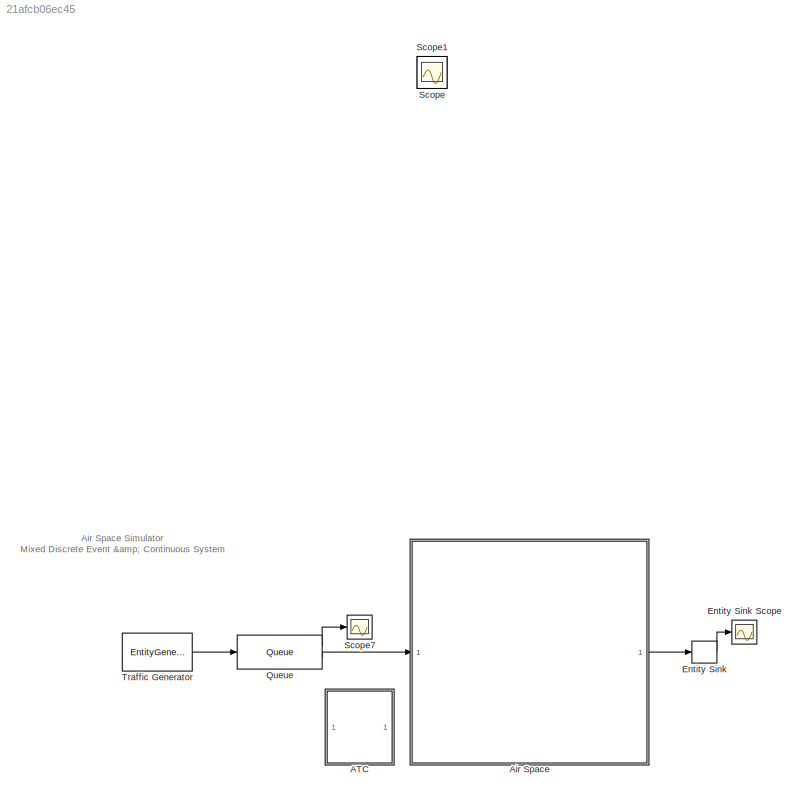
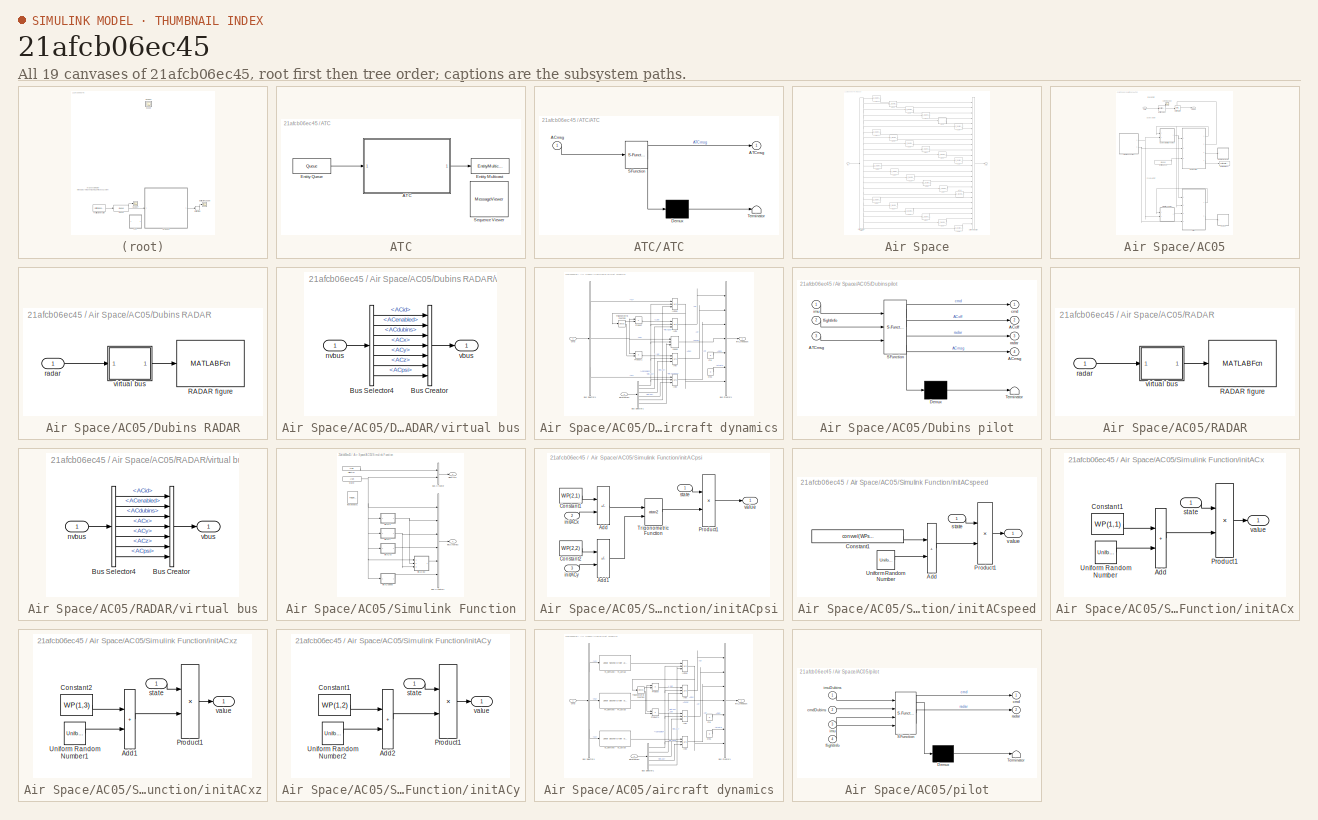
[diagram: thumbnail index - all 19 canvases of the model, root first then tree order]
MODEL slx_21afcb06ec45
KIND model
CONFIG AbsTol = auto
CONFIG EnableMultiTasking = off
CONFIG FixedStep = 1
CONFIG InitFcn = clear all\nclc\n\n%run config_Houston.m\nrun config_Malaga.m\n\nload('PBNsim_buses');
CONFIG MaxStep = auto
CONFIG MinStep = auto
CONFIG RelTol = 1e-3
CONFIG SampleTimeConstraint = Unconstrained
CONFIG SolverName = ode3
CONFIG StartFcn = rng('shuffle');\n
CONFIG StartTime = 0.0
CONFIG StopTime = 5000
BLOCK [SubSystem] ATC
  Ports = []
  RequestExecContextInheritance = off
BLOCK [SubSystem] ATC/ATC
  ErrorFcn = Stateflow.Translate.translate
  PermitHierarchicalResolution = ExplicitOnly
  Ports = [1, 1]
  RequestExecContextInheritance = off
  SFBlockType = Chart
  TreatAsAtomicUnit = on
BLOCK [Demux] ATC/ATC/ Demux 
  Outputs = 1
  Ports = [1, 1]
BLOCK [S-Function] ATC/ATC/ SFunction 
  EnableBusSupport = on
  FunctionName = sf_sfun
  InputPortMessageModes = m
  OutputPortMessageModes = n,m
  Parameters = WP,WPabort,WPnext,WPspeed
  PortCounts = [1 2]
  Ports = [1, 2]
  SFcnIsStateOwnerBlock = off
  SFunctionDeploymentMode = off
  Tag = Stateflow S-Function 2
BLOCK [Terminator] ATC/ATC/ Terminator 
BLOCK [Inport] ATC/ATC/ACmsg
BLOCK [Outport] ATC/ATC/ATCmsg
  VectorParamsAs1DForOutWhenUnconnected = off
BLOCK [EntityMulticast] ATC/Entity Multicast
  InputPortMessageModes = m
  MulticastTag = ATCcomm
BLOCK [Queue] ATC/Entity Queue
  Capacity = 100
  EntityArrivalSource = Multicast
  MulticastTag = ACcomm
  OutputPortMap = o5
  OutputPortMessageModes = m
  Ports = [0, 1]
BLOCK [MessageViewer] ATC/Sequence Viewer
  History = 1000
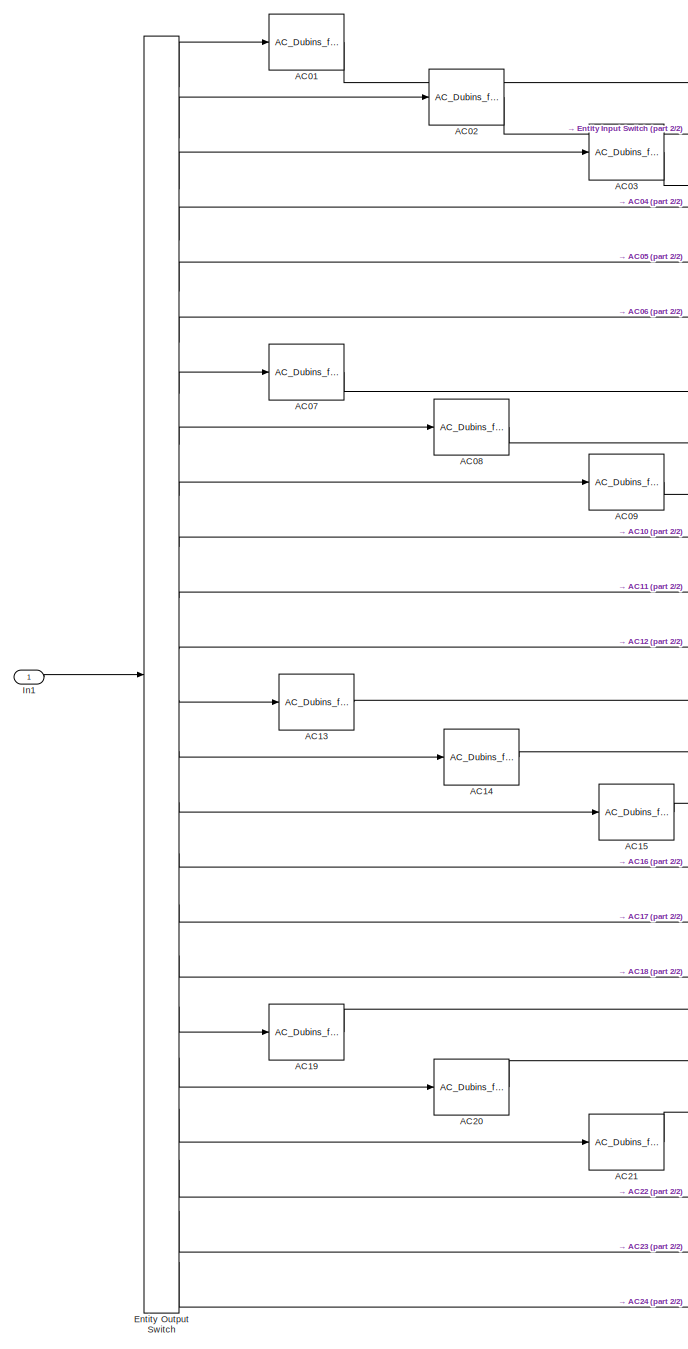
[diagram: Air Space - part 1/2, left side, full height]
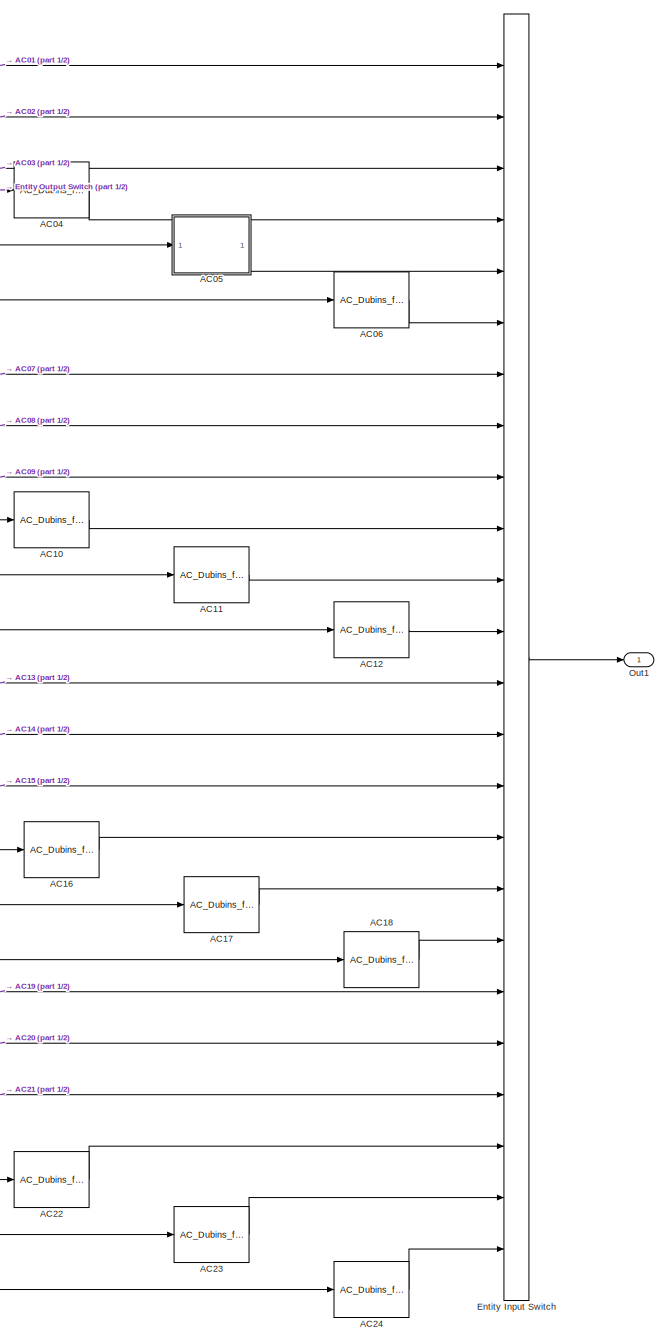
[diagram: Air Space - part 2/2, right side, full height]
BLOCK [SubSystem] Air Space
  Ports = [1, 1]
  RequestExecContextInheritance = off
BLOCK [Reference] Air Space/AC01  REF=AC/AC_Dubins_flyable
  Ports = [1, 1]
  SourceBlock = AC/AC_Dubins_flyable
  SourceType = SubSystem
BLOCK [Reference] Air Space/AC02  REF=AC/AC_Dubins_flyable
  Ports = [1, 1]
  SourceBlock = AC/AC_Dubins_flyable
  SourceType = SubSystem
BLOCK [Reference] Air Space/AC03  REF=AC/AC_Dubins_flyable
  Ports = [1, 1]
  SourceBlock = AC/AC_Dubins_flyable
  SourceType = SubSystem
BLOCK [Reference] Air Space/AC04  REF=AC/AC_Dubins_flyable
  Ports = [1, 1]
  SourceBlock = AC/AC_Dubins_flyable
  SourceType = SubSystem
BLOCK [SubSystem] Air Space/AC05
  Ports = [1, 1]
  RequestExecContextInheritance = off
BLOCK [Inport] Air Space/AC05/ACin
BLOCK [Outport] Air Space/AC05/ACout
  VectorParamsAs1DForOutWhenUnconnected = off
BLOCK [SubSystem] Air Space/AC05/Dubins RADAR
  NameLocation = top
  Ports = [1]
  RequestExecContextInheritance = off
BLOCK [MATLABFcn] Air Space/AC05/Dubins RADAR/RADAR figure
  MATLABFcn = PBNsim_RADAR
  Output1D = off
  OutputDimensions = 0
  Ports = [1]
  StartFcn = clear functions;\nclc;
BLOCK [Inport] Air Space/AC05/Dubins RADAR/radar
BLOCK [SubSystem] Air Space/AC05/Dubins RADAR/virtual bus
  Ports = [1, 1]
  RequestExecContextInheritance = off
BLOCK [BusCreator] Air Space/AC05/Dubins RADAR/virtual bus/Bus Creator
  DisplayOption = bar
  InheritFromInputs = off
  Inputs = 7
  OutDataTypeStr = Bus: bus_radar
  Ports = [7, 1]
BLOCK [BusSelector] Air Space/AC05/Dubins RADAR/virtual bus/Bus Selector4
  OutputSignals = ACid,ACenabled,ACdubins,ACx,ACy,ACz,ACpsi
  Ports = [1, 7]
BLOCK [Inport] Air Space/AC05/Dubins RADAR/virtual bus/nvbus
BLOCK [Outport] Air Space/AC05/Dubins RADAR/virtual bus/vbus
  VectorParamsAs1DForOutWhenUnconnected = off
BLOCK [SubSystem] Air Space/AC05/Dubins aircraft dynamics
  Ports = [2, 1]
  RequestExecContextInheritance = off
BLOCK [BusCreator] Air Space/AC05/Dubins aircraft dynamics/Bus Creator1
  DisplayOption = bar
  InheritFromInputs = off
  Inputs = 7
  OutDataTypeStr = Bus: bus_IMU
  Ports = [7, 1]
BLOCK [BusSelector] Air Space/AC05/Dubins aircraft dynamics/Bus Selector1
  OutputSignals = ACenabled,initACx,initACy,initACz,initACpsi,initACspeed
  Ports = [1, 6]
BLOCK [BusSelector] Air Space/AC05/Dubins aircraft dynamics/Bus Selector4
  OutputSignals = Ys,Fa,Vs
  Ports = [1, 3]
BLOCK [Integrator] Air Space/AC05/Dubins aircraft dynamics/INTpsi
  ExternalReset = rising
  InitialCondition = initX(3)
  InitialConditionSource = external
  Ports = [3, 1]
BLOCK [Integrator] Air Space/AC05/Dubins aircraft dynamics/INTx
  ExternalReset = rising
  InitialCondition = initX(3)
  InitialConditionSource = external
  Ports = [3, 1]
BLOCK [Integrator] Air Space/AC05/Dubins aircraft dynamics/INTy
  ExternalReset = rising
  InitialCondition = initX(3)
  InitialConditionSource = external
  Ports = [3, 1]
BLOCK [Integrator] Air Space/AC05/Dubins aircraft dynamics/INTz
  ExternalReset = rising
  InitialCondition = initX(3)
  InitialConditionSource = external
  Ports = [3, 1]
BLOCK [Product] Air Space/AC05/Dubins aircraft dynamics/Product
  Ports = [2, 1]
BLOCK [Product] Air Space/AC05/Dubins aircraft dynamics/Product1
  Ports = [2, 1]
BLOCK [Trigonometry] Air Space/AC05/Dubins aircraft dynamics/Trigonometric Function
  Operator = sincos
  Ports = [1, 2]
BLOCK [Inport] Air Space/AC05/Dubins aircraft dynamics/cmd
BLOCK [Constant] Air Space/AC05/Dubins aircraft dynamics/cte
  Value = 0
BLOCK [Constant] Air Space/AC05/Dubins aircraft dynamics/cte1
  Value = 0
BLOCK [Outport] Air Space/AC05/Dubins aircraft dynamics/imu_feedback
  OutputWhenDisabled = reset
  SourceOfInitialOutputValue = Input signal
  VectorParamsAs1DForOutWhenUnconnected = off
BLOCK [Inport] Air Space/AC05/Dubins aircraft dynamics/initDynamics
  Port = 2
BLOCK [Delay] Air Space/AC05/Dubins aircraft dynamics/speed
  DelayLength = 1
  ExternalReset = Rising
  InitialCondition = convvel(240,'kts','m/s');
  InitialConditionSource = Input port
  InputPortMap = u0,r5,p4
  Ports = [3, 1]
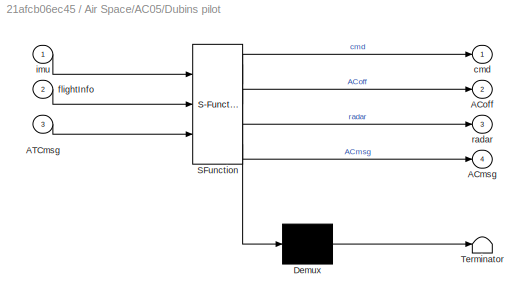
BLOCK [SubSystem] Air Space/AC05/Dubins pilot
  ErrorFcn = Stateflow.Translate.translate
  PermitHierarchicalResolution = ExplicitOnly
  Ports = [3, 4]
  RequestExecContextInheritance = off
  SFBlockType = Chart
  TreatAsAtomicUnit = on
BLOCK [Demux] Air Space/AC05/Dubins pilot/ Demux 
  Outputs = 1
  Ports = [1, 1]
BLOCK [S-Function] Air Space/AC05/Dubins pilot/ SFunction 
  EnableBusSupport = on
  FunctionName = sf_sfun
  InputPortMessageModes = n,n,m
  OutputPortMessageModes = n,n,m,n,m
  Parameters = WP,WPspeed
  PortCounts = [3 5]
  Ports = [3, 5]
  SFcnIsStateOwnerBlock = off
  SFunctionDeploymentMode = off
  Tag = Stateflow S-Function 1
BLOCK [Terminator] Air Space/AC05/Dubins pilot/ Terminator 
BLOCK [Outport] Air Space/AC05/Dubins pilot/ACmsg
  Port = 4
  VectorParamsAs1DForOutWhenUnconnected = off
BLOCK [Outport] Air Space/AC05/Dubins pilot/ACoff
  Port = 2
  VectorParamsAs1DForOutWhenUnconnected = off
BLOCK [Inport] Air Space/AC05/Dubins pilot/ATCmsg
  Port = 3
BLOCK [Outport] Air Space/AC05/Dubins pilot/cmd
  VectorParamsAs1DForOutWhenUnconnected = off
BLOCK [Inport] Air Space/AC05/Dubins pilot/flightInfo
  Port = 2
BLOCK [Inport] Air Space/AC05/Dubins pilot/imu
BLOCK [Outport] Air Space/AC05/Dubins pilot/radar
  Port = 3
  VectorParamsAs1DForOutWhenUnconnected = off
BLOCK [EntityGate] Air Space/AC05/Entity Gate
  InputPortMap = u0,u1
  InputPortMessageModes = m,m
  OperatingMode = Release gate
  OutputPortMap = o0
  OutputPortMessageModes = m
  Ports = [2, 1]
BLOCK [EntityMulticast] Air Space/AC05/Entity Multicast
  InputPortMessageModes = m
  MulticastTag = ACcomm
BLOCK [Queue] Air Space/AC05/Entity Queue
  Capacity = 100
  EntityArrivalSource = Multicast
  MulticastTag = ATCcomm
  OutputPortMap = o5
  OutputPortMessageModes = m
  Ports = [0, 1]
BLOCK [EntityServer] Air Space/AC05/Entity server
  Capacity = 1
  EntryAction = instancedAC(entity.flightId,true);
  InputPortMap = u2
  InputPortMessageModes = m
  NumberEntitiesInBlock = on
  OutputPortMap = o1,o9
  OutputPortMessageModes = n,m
  Ports = [1, 2]
  ServiceCompleteAction = instancedAC(entity.flightId,false);
  ServiceTimeValue = 10
BLOCK [SubSystem] Air Space/AC05/RADAR
  NameLocation = top
  Ports = [1]
  RequestExecContextInheritance = off
BLOCK [MATLABFcn] Air Space/AC05/RADAR/RADAR figure
  MATLABFcn = PBNsim_RADAR
  Output1D = off
  OutputDimensions = 0
  Ports = [1]
  StartFcn = clear functions;\nclc;
BLOCK [Inport] Air Space/AC05/RADAR/radar
BLOCK [SubSystem] Air Space/AC05/RADAR/virtual bus
  Ports = [1, 1]
  RequestExecContextInheritance = off
BLOCK [BusCreator] Air Space/AC05/RADAR/virtual bus/Bus Creator
  DisplayOption = bar
  InheritFromInputs = off
  Inputs = 7
  OutDataTypeStr = Bus: bus_radar
  Ports = [7, 1]
BLOCK [BusSelector] Air Space/AC05/RADAR/virtual bus/Bus Selector4
  OutputSignals = ACid,ACenabled,ACdubins,ACx,ACy,ACz,ACpsi
  Ports = [1, 7]
BLOCK [Inport] Air Space/AC05/RADAR/virtual bus/nvbus
BLOCK [Outport] Air Space/AC05/RADAR/virtual bus/vbus
  VectorParamsAs1DForOutWhenUnconnected = off
BLOCK [SubSystem] Air Space/AC05/Simulink Function
  Ports = [0, 2, 0, 1]
  RequestExecContextInheritance = off
  TreatAsAtomicUnit = on
BLOCK [BusCreator] Air Space/AC05/Simulink Function/Bus Creator
  DisplayOption = bar
  InheritFromInputs = off
  Inputs = 2
  OutDataTypeStr = Bus: bus_ADSB
  Ports = [2, 1]
BLOCK [BusCreator] Air Space/AC05/Simulink Function/Bus Creator1
  DisplayOption = bar
  InheritFromInputs = off
  Inputs = 6
  OutDataTypeStr = Bus: bus_initDynamics
  Ports = [6, 1]
BLOCK [ArgIn] Air Space/AC05/Simulink Function/flightID
  ArgumentName = flightID
BLOCK [Outport] Air Space/AC05/Simulink Function/flightInfo
  Port = 2
  VectorParamsAs1DForOutWhenUnconnected = off
BLOCK [SubSystem] Air Space/AC05/Simulink Function/initACpsi
  Ports = [3, 1]
  RequestExecContextInheritance = off
BLOCK [Sum] Air Space/AC05/Simulink Function/initACpsi/Add
  IconShape = rectangular
  Inputs = +-
  Ports = [2, 1]
BLOCK [Sum] Air Space/AC05/Simulink Function/initACpsi/Add1
  IconShape = rectangular
  Inputs = +-
  Ports = [2, 1]
BLOCK [Constant] Air Space/AC05/Simulink Function/initACpsi/Constant1
  Value = WP(2,1)
BLOCK [Constant] Air Space/AC05/Simulink Function/initACpsi/Constant2
  Value = WP(2,2)
BLOCK [Product] Air Space/AC05/Simulink Function/initACpsi/Product1
  Ports = [2, 1]
BLOCK [Trigonometry] Air Space/AC05/Simulink Function/initACpsi/Trigonometric Function
  Operator = atan2
  Ports = [2, 1]
BLOCK [Inport] Air Space/AC05/Simulink Function/initACpsi/initACx
  Port = 2
BLOCK [Inport] Air Space/AC05/Simulink Function/initACpsi/initACy
  Port = 3
BLOCK [Inport] Air Space/AC05/Simulink Function/initACpsi/state
BLOCK [Outport] Air Space/AC05/Simulink Function/initACpsi/value
  VectorParamsAs1DForOutWhenUnconnected = off
BLOCK [SubSystem] Air Space/AC05/Simulink Function/initACspeed
  Ports = [1, 1]
  RequestExecContextInheritance = off
BLOCK [Sum] Air Space/AC05/Simulink Function/initACspeed/Add
  IconShape = rectangular
  Ports = [2, 1]
BLOCK [Constant] Air Space/AC05/Simulink Function/initACspeed/Constant1
  Value = convvel(WPspeed(2),'kts','m/s');
BLOCK [Product] Air Space/AC05/Simulink Function/initACspeed/Product1
  Ports = [2, 1]
BLOCK [UniformRandomNumber] Air Space/AC05/Simulink Function/initACspeed/Uniform Random Number
  Commented = on
  Maximum = 100
  Minimum = 0
  Seed = randi(10000)
BLOCK [Inport] Air Space/AC05/Simulink Function/initACspeed/state
BLOCK [Outport] Air Space/AC05/Simulink Function/initACspeed/value
  VectorParamsAs1DForOutWhenUnconnected = off
BLOCK [SubSystem] Air Space/AC05/Simulink Function/initACx
  Ports = [1, 1]
  RequestExecContextInheritance = off
BLOCK [Sum] Air Space/AC05/Simulink Function/initACx/Add
  IconShape = rectangular
  Ports = [2, 1]
BLOCK [Constant] Air Space/AC05/Simulink Function/initACx/Constant1
  Value = WP(1,1)
BLOCK [Product] Air Space/AC05/Simulink Function/initACx/Product1
  Ports = [2, 1]
BLOCK [UniformRandomNumber] Air Space/AC05/Simulink Function/initACx/Uniform Random Number
  Commented = on
  Maximum = 100
  Minimum = 0
  Seed = randi(10000)
BLOCK [Inport] Air Space/AC05/Simulink Function/initACx/state
BLOCK [Outport] Air Space/AC05/Simulink Function/initACx/value
  VectorParamsAs1DForOutWhenUnconnected = off
BLOCK [SubSystem] Air Space/AC05/Simulink Function/initACxz
  Ports = [1, 1]
  RequestExecContextInheritance = off
BLOCK [Sum] Air Space/AC05/Simulink Function/initACxz/Add1
  IconShape = rectangular
  Ports = [2, 1]
BLOCK [Constant] Air Space/AC05/Simulink Function/initACxz/Constant2
  Value = WP(1,3)
BLOCK [Product] Air Space/AC05/Simulink Function/initACxz/Product1
  Ports = [2, 1]
BLOCK [UniformRandomNumber] Air Space/AC05/Simulink Function/initACxz/Uniform Random Number1
  Commented = on
  Maximum = 20
  Minimum = 0
  Seed = randi(10000)
BLOCK [Inport] Air Space/AC05/Simulink Function/initACxz/state
BLOCK [Outport] Air Space/AC05/Simulink Function/initACxz/value
  VectorParamsAs1DForOutWhenUnconnected = off
BLOCK [SubSystem] Air Space/AC05/Simulink Function/initACy
  Ports = [1, 1]
  RequestExecContextInheritance = off
BLOCK [Sum] Air Space/AC05/Simulink Function/initACy/Add2
  IconShape = rectangular
  Ports = [2, 1]
BLOCK [Constant] Air Space/AC05/Simulink Function/initACy/Constant1
  Value = WP(1,2)
BLOCK [Product] Air Space/AC05/Simulink Function/initACy/Product1
  Ports = [2, 1]
BLOCK [UniformRandomNumber] Air Space/AC05/Simulink Function/initACy/Uniform Random Number2
  Commented = on
  Maximum = 100
  Minimum = 0
  Seed = randi(10000)
BLOCK [Inport] Air Space/AC05/Simulink Function/initACy/state
BLOCK [Outport] Air Space/AC05/Simulink Function/initACy/value
  VectorParamsAs1DForOutWhenUnconnected = off
BLOCK [Outport] Air Space/AC05/Simulink Function/initDynamics
  VectorParamsAs1DForOutWhenUnconnected = off
BLOCK [TriggerPort] Air Space/AC05/Simulink Function/instancedAC
  FunctionName = instancedAC
  FunctionVisibility = scoped
  IsSimulinkFunction = on
  Ports = []
  StatesWhenEnabling = held
  TriggerType = function-call
  VariantControl = Variant
BLOCK [ArgIn] Air Space/AC05/Simulink Function/state
  ArgumentName = state
  OutDataTypeStr = boolean
  Port = 2
BLOCK [SubSystem] Air Space/AC05/aircraft dynamics
  Ports = [2, 1]
  RequestExecContextInheritance = off
BLOCK [BusCreator] Air Space/AC05/aircraft dynamics/Bus Creator1
  DisplayOption = bar
  InheritFromInputs = off
  Inputs = 7
  OutDataTypeStr = Bus: bus_IMU
  Ports = [7, 1]
BLOCK [BusSelector] Air Space/AC05/aircraft dynamics/Bus Selector1
  OutputSignals = ACenabled,initACx,initACy,initACz,initACpsi
  Ports = [1, 5]
BLOCK [BusSelector] Air Space/AC05/aircraft dynamics/Bus Selector4
  OutputSignals = Ys,Fa,Vs
  Ports = [1, 3]
BLOCK [Reference] Air Space/AC05/aircraft dynamics/Fv_demand - Fv_actual  REF=aerolibactuator/Linear Second-Order Actuator
  Ports = [1, 1]
  SourceBlock = aerolibactuator/Linear Second-Order Actuator
  SourceProductBaseCode = AE
  SourceType = LinearSecondOrderActuator
BLOCK [Integrator] Air Space/AC05/aircraft dynamics/INTpsi
  ExternalReset = rising
  InitialCondition = initX(3)
  InitialConditionSource = external
  Ports = [3, 1]
BLOCK [Integrator] Air Space/AC05/aircraft dynamics/INTx
  ExternalReset = rising
  InitialCondition = initX(3)
  InitialConditionSource = external
  Ports = [3, 1]
BLOCK [Integrator] Air Space/AC05/aircraft dynamics/INTy
  ExternalReset = rising
  InitialCondition = initX(3)
  InitialConditionSource = external
  Ports = [3, 1]
BLOCK [Integrator] Air Space/AC05/aircraft dynamics/INTz
  ExternalReset = rising
  InitialCondition = initX(3)
  InitialConditionSource = external
  Ports = [3, 1]
BLOCK [Product] Air Space/AC05/aircraft dynamics/Product
  Ports = [2, 1]
BLOCK [Product] Air Space/AC05/aircraft dynamics/Product1
  Ports = [2, 1]
BLOCK [Trigonometry] Air Space/AC05/aircraft dynamics/Trigonometric Function
  Operator = sincos
  Ports = [1, 2]
BLOCK [Reference] Air Space/AC05/aircraft dynamics/Vs_demand - Vs_actual  REF=aerolibactuator/Linear Second-Order Actuator
  Ports = [1, 1]
  SourceBlock = aerolibactuator/Linear Second-Order Actuator
  SourceProductBaseCode = AE
  SourceType = LinearSecondOrderActuator
BLOCK [Reference] Air Space/AC05/aircraft dynamics/Ys_demand - Ys_actual  REF=aerolibactuator/Linear Second-Order Actuator
  Ports = [1, 1]
  SourceBlock = aerolibactuator/Linear Second-Order Actuator
  SourceProductBaseCode = AE
  SourceType = LinearSecondOrderActuator
BLOCK [Inport] Air Space/AC05/aircraft dynamics/cmd
BLOCK [Constant] Air Space/AC05/aircraft dynamics/cte
  Value = 0
BLOCK [Constant] Air Space/AC05/aircraft dynamics/cte1
  Value = 0
BLOCK [Outport] Air Space/AC05/aircraft dynamics/imu_feedback
  OutputWhenDisabled = reset
  SourceOfInitialOutputValue = Input signal
  VectorParamsAs1DForOutWhenUnconnected = off
BLOCK [Inport] Air Space/AC05/aircraft dynamics/initDynamics
  Port = 2
BLOCK [SubSystem] Air Space/AC05/pilot
  ErrorFcn = Stateflow.Translate.translate
  PermitHierarchicalResolution = ExplicitOnly
  Ports = [4, 2]
  RequestExecContextInheritance = off
  SFBlockType = Chart
  TreatAsAtomicUnit = on
BLOCK [Demux] Air Space/AC05/pilot/ Demux 
  Outputs = 1
  Ports = [1, 1]
BLOCK [S-Function] Air Space/AC05/pilot/ SFunction 
  EnableBusSupport = on
  FunctionName = sf_sfun
  Parameters = WP,WPspeed
  PortCounts = [4 3]
  Ports = [4, 3]
  SFcnIsStateOwnerBlock = off
  SFunctionDeploymentMode = off
  Tag = Stateflow S-Function 3
BLOCK [Terminator] Air Space/AC05/pilot/ Terminator 
BLOCK [Outport] Air Space/AC05/pilot/cmd
  VectorParamsAs1DForOutWhenUnconnected = off
BLOCK [Inport] Air Space/AC05/pilot/cmdDubins
  Port = 2
BLOCK [Inport] Air Space/AC05/pilot/flightInfo
  Port = 4
BLOCK [Inport] Air Space/AC05/pilot/imu
  Port = 3
BLOCK [Inport] Air Space/AC05/pilot/imuDubins
BLOCK [Outport] Air Space/AC05/pilot/radar
  Port = 2
  VectorParamsAs1DForOutWhenUnconnected = off
BLOCK [Scope] Air Space/AC05/server scope
  Floating = off
  NumInputPorts = 1
  Ports = [1]
  ScopeSpecificationString = Simulink.scopes.TimeScopeBlockCfg('CurrentConfiguration', extmgr.ConfigurationSet(extmgr.Configuration('Core','General UI',true,'ShowStatusbar',false),extmgr.Configuration('Core','Source UI',true),extmgr.Configuration('Sources','WiredSimulink',true,'DataLoggingVariableName','ScopeData1'),extmgr.Configuration('Visuals','Time Domain',true,'SerializedDisplays',{struct('MinYLimReal','-1','MaxYLimReal'...<+1587ch>
BLOCK [Reference] Air Space/AC06  REF=AC/AC_Dubins_flyable
  Ports = [1, 1]
  SourceBlock = AC/AC_Dubins_flyable
  SourceType = SubSystem
BLOCK [Reference] Air Space/AC07  REF=AC/AC_Dubins_flyable
  Ports = [1, 1]
  SourceBlock = AC/AC_Dubins_flyable
  SourceType = SubSystem
BLOCK [Reference] Air Space/AC08  REF=AC/AC_Dubins_flyable
  Ports = [1, 1]
  SourceBlock = AC/AC_Dubins_flyable
  SourceType = SubSystem
BLOCK [Reference] Air Space/AC09  REF=AC/AC_Dubins_flyable
  Ports = [1, 1]
  SourceBlock = AC/AC_Dubins_flyable
  SourceType = SubSystem
BLOCK [Reference] Air Space/AC10  REF=AC/AC_Dubins_flyable
  Ports = [1, 1]
  SourceBlock = AC/AC_Dubins_flyable
  SourceType = SubSystem
BLOCK [Reference] Air Space/AC11  REF=AC/AC_Dubins_flyable
  Ports = [1, 1]
  SourceBlock = AC/AC_Dubins_flyable
  SourceType = SubSystem
BLOCK [Reference] Air Space/AC12  REF=AC/AC_Dubins_flyable
  Ports = [1, 1]
  SourceBlock = AC/AC_Dubins_flyable
  SourceType = SubSystem
BLOCK [Reference] Air Space/AC13  REF=AC/AC_Dubins_flyable
  Ports = [1, 1]
  SourceBlock = AC/AC_Dubins_flyable
  SourceType = SubSystem
BLOCK [Reference] Air Space/AC14  REF=AC/AC_Dubins_flyable
  Ports = [1, 1]
  SourceBlock = AC/AC_Dubins_flyable
  SourceType = SubSystem
BLOCK [Reference] Air Space/AC15  REF=AC/AC_Dubins_flyable
  Ports = [1, 1]
  SourceBlock = AC/AC_Dubins_flyable
  SourceType = SubSystem
BLOCK [Reference] Air Space/AC16  REF=AC/AC_Dubins_flyable
  Ports = [1, 1]
  SourceBlock = AC/AC_Dubins_flyable
  SourceType = SubSystem
BLOCK [Reference] Air Space/AC17  REF=AC/AC_Dubins_flyable
  Ports = [1, 1]
  SourceBlock = AC/AC_Dubins_flyable
  SourceType = SubSystem
BLOCK [Reference] Air Space/AC18  REF=AC/AC_Dubins_flyable
  Ports = [1, 1]
  SourceBlock = AC/AC_Dubins_flyable
  SourceType = SubSystem
BLOCK [Reference] Air Space/AC19  REF=AC/AC_Dubins_flyable
  Ports = [1, 1]
  SourceBlock = AC/AC_Dubins_flyable
  SourceType = SubSystem
BLOCK [Reference] Air Space/AC20  REF=AC/AC_Dubins_flyable
  Ports = [1, 1]
  SourceBlock = AC/AC_Dubins_flyable
  SourceType = SubSystem
BLOCK [Reference] Air Space/AC21  REF=AC/AC_Dubins_flyable
  Ports = [1, 1]
  SourceBlock = AC/AC_Dubins_flyable
  SourceType = SubSystem
BLOCK [Reference] Air Space/AC22  REF=AC/AC_Dubins_flyable
  Ports = [1, 1]
  SourceBlock = AC/AC_Dubins_flyable
  SourceType = SubSystem
BLOCK [Reference] Air Space/AC23  REF=AC/AC_Dubins_flyable
  Ports = [1, 1]
  SourceBlock = AC/AC_Dubins_flyable
  SourceType = SubSystem
BLOCK [Reference] Air Space/AC24  REF=AC/AC_Dubins_flyable
  Ports = [1, 1]
  SourceBlock = AC/AC_Dubins_flyable
  SourceType = SubSystem
BLOCK [EntityInputSwitch] Air Space/Entity Input Switch
  InputPortMap = u1,u2,u3,u4,u5,u6,u7,u8,u9,u10,u11,u12,u13,u14,u15,u16,u17,u18,u19,u20,u21,u22,u23,u24
  InputPortMessageModes = m,m,m,m,m,m,m,m,m,m,m,m,m,m,m,m,m,m,m,m,m,m,m,m
  NumberInputPorts = 24
  OutputPortMap = o0
  OutputPortMessageModes = m
  Ports = [24, 1]
BLOCK [EntityOutputSwitch] Air Space/Entity Output Switch
  InputPortMap = u1
  InputPortMessageModes = m
  NumberOutputPorts = 24
  OutputPortMap = o0,o1,o2,o3,o4,o5,o6,o7,o8,o9,o10,o11,o12,o13,o14,o15,o16,o17,o18,o19,o20,o21,o22,o23
  OutputPortMessageModes = m,m,m,m,m,m,m,m,m,m,m,m,m,m,m,m,m,m,m,m,m,m,m,m
  Ports = [1, 24]
  SwitchAttributeName = Attribute1
BLOCK [Inport] Air Space/In1
BLOCK [Outport] Air Space/Out1
BLOCK [EntityTerminator] Entity Sink
  EntryAction = coder.extrinsic('get_param')\ncurrentTime = 0;\n%currentTime = get_param('simulator18b','SimulationTime');\ncurrentTime = get_param(get_param(0,'CurrentSystem'),'SimulationTime');\nflightTime  = currentTime -entity.startTime;\n\nfprintf('%5.0f: aeronave %3.0f aterriza en %4.0f s\n',...\n    currentTime,...\n    entity.flightId,...\n    flightTime);
  InputPortMap = u0
  InputPortMessageModes = m
  NumberEntitiesArrived = on
  OutputPortMap = o0
  Ports = [1, 1]
BLOCK [Scope] Entity Sink Scope
  Commented = on
  Floating = off
  NumInputPorts = 1
  Ports = [1]
  ScopeSpecificationString = Simulink.scopes.TimeScopeBlockCfg('CurrentConfiguration', extmgr.ConfigurationSet(extmgr.Configuration('Core','General UI',true,'ShowStatusbar',false),extmgr.Configuration('Core','Source UI',true),extmgr.Configuration('Sources','WiredSimulink',true,'DataLoggingVariableName','ScopeData1'),extmgr.Configuration('Visuals','Time Domain',true,'SerializedDisplays',{struct('MinYLimReal','-0.375','MaxYLimR...<+1555ch>
BLOCK [Queue] Queue
  BlockedAction = coder.extrinsic('set_param','gcs');\nset_param(gcs, 'SimulationCommand', 'stop');\n\ndisp('Simulación interrumpida: no hay aviones suficientes para satisfacer la demanda de tráfico aéreo');
  Capacity = 10
  InputPortMap = u0
  InputPortMessageModes = m
  NumberEntitiesInBlock = on
  OutputPortMap = o1,o5
  OutputPortMessageModes = n,m
  Ports = [1, 2]
  PrioritySource = PriorityAttributeName
BLOCK [Scope] Scope
  Floating = off
  IOType = viewer
  NumInputPorts = 1
  Ports = []
  ScopeSpecificationString = Simulink.scopes.TimeScopeBlockCfg('CurrentConfiguration', extmgr.ConfigurationSet(extmgr.Configuration('Core','General UI',true),extmgr.Configuration('Core','Source UI',true),extmgr.Configuration('Sources','WiredSimulink',true,'DataLoggingVariableName','ScopeData2'),extmgr.Configuration('Visuals','Time Domain',true,'SerializedDisplays',{struct('MinYLimReal','-0.05483','MaxYLimReal','0.05483','YLab...<+1418ch>
BLOCK [Scope] Scope1
  Floating = off
  IOType = viewer
  NumInputPorts = 1
  Ports = []
  ScopeSpecificationString = Simulink.scopes.TimeScopeBlockCfg('CurrentConfiguration', extmgr.ConfigurationSet(extmgr.Configuration('Core','General UI',true),extmgr.Configuration('Core','Source UI',true),extmgr.Configuration('Sources','WiredSimulink',true,'DataLoggingVariableName','ScopeData1'),extmgr.Configuration('Visuals','Time Domain',true,'SerializedDisplays',{struct('MinYLimReal','-0.05483','MaxYLimReal','0.05483','YLab...<+1389ch>
BLOCK [Scope] Scope7
  Commented = on
  Floating = off
  NumInputPorts = 1
  Ports = [1]
  ScopeSpecificationString = Simulink.scopes.TimeScopeBlockCfg('CurrentConfiguration', extmgr.ConfigurationSet(extmgr.Configuration('Core','General UI',true,'ShowStatusbar',false),extmgr.Configuration('Core','Source UI',true),extmgr.Configuration('Sources','WiredSimulink',true,'DataLoggingVariableName','ScopeData3'),extmgr.Configuration('Visuals','Time Domain',true,'SerializedDisplays',{struct('MinYLimReal','-0.2','MaxYLimRea...<+1554ch>
BLOCK [EntityGenerator] Traffic Generator
  AttributeInitialValue = 0|0
  AttributeName = flightId|startTime
  EntityType = Structured
  EntityTypeName = aircraft
  GenerateAction = persistent next_flightId;\nif isempty(next_flightId)\n    next_flightId = 1;\nend\nentity.flightId = next_flightId;\nnext_flightId = next_flightId + 1;\n\ncoder.extrinsic('get_param')\n%entity.startTime = get_param('simulator18b','SimulationTime');\nentity.startTime = get_param(get_param(0,'CurrentSystem'),'SimulationTime');\nfprintf('%5.0f: aeronave %3.0f entra en espacio aereo\n',entity.startTime,entity.f...<+9ch>
  IntergenerationTimeAction = % Pattern: Repeating Sequence\npersistent SEQ1;\npersistent idx1;\nif isempty(SEQ1)\n    \n    % PRUEBAS EN MALAGA: \n    SEQ1 = [ 90 90 90 90 90 90 90 90         180        90 ];\n    \n    idx1 = 1;\nend\n\ndt = SEQ1(idx1);\n\nif idx1 == numel(SEQ1)\n    idx1 = 1;    \nelse\n    idx1 = idx1 + 1;\nend\n\n%% para generar un solo avion descomentar lo siguiente\n% dt = inf
  OutputPortMap = o3
  OutputPortMessageModes = m
  Period = 120
  Ports = [0, 1]
  TimeSource = MATLAB action
ANNOTATION (root): Air Space Simulator Mixed Discrete Event & Continuous System
ANNOTATION Air Space/AC05: Dubins Aircraft
ANNOTATION Air Space/AC05: Flyable Aircraft
ANNOTATION Air Space/AC05: flow of Aircrafts
LINE ATC/ATC:1 -> ATC/Entity Multicast:1
LINE ATC/Entity Queue:1 -> ATC/ATC:1
LINE Air Space/AC01:1 -> Air Space/Entity Input Switch:1
LINE Air Space/AC02:1 -> Air Space/Entity Input Switch:2
LINE Air Space/AC03:1 -> Air Space/Entity Input Switch:3
LINE Air Space/AC04:1 -> Air Space/Entity Input Switch:4
LINE Air Space/AC05/ACin:1 -> Air Space/AC05/Entity server:1
LINE Air Space/AC05/Dubins RADAR/radar:1 -> Air Space/AC05/Dubins RADAR/virtual bus:1
LINE Air Space/AC05/Dubins RADAR/virtual bus/Bus Creator:1 -> Air Space/AC05/Dubins RADAR/virtual bus/vbus:1
LINE Air Space/AC05/Dubins RADAR/virtual bus/Bus Selector4:1 -> Air Space/AC05/Dubins RADAR/virtual bus/Bus Creator:1
LINE Air Space/AC05/Dubins RADAR/virtual bus/Bus Selector4:2 -> Air Space/AC05/Dubins RADAR/virtual bus/Bus Creator:2
LINE Air Space/AC05/Dubins RADAR/virtual bus/Bus Selector4:3 -> Air Space/AC05/Dubins RADAR/virtual bus/Bus Creator:3
LINE Air Space/AC05/Dubins RADAR/virtual bus/Bus Selector4:4 -> Air Space/AC05/Dubins RADAR/virtual bus/Bus Creator:4
LINE Air Space/AC05/Dubins RADAR/virtual bus/Bus Selector4:5 -> Air Space/AC05/Dubins RADAR/virtual bus/Bus Creator:5
LINE Air Space/AC05/Dubins RADAR/virtual bus/Bus Selector4:6 -> Air Space/AC05/Dubins RADAR/virtual bus/Bus Creator:6
LINE Air Space/AC05/Dubins RADAR/virtual bus/Bus Selector4:7 -> Air Space/AC05/Dubins RADAR/virtual bus/Bus Creator:7
LINE Air Space/AC05/Dubins RADAR/virtual bus/nvbus:1 -> Air Space/AC05/Dubins RADAR/virtual bus/Bus Selector4:1
LINE Air Space/AC05/Dubins RADAR/virtual bus:1 -> Air Space/AC05/Dubins RADAR/RADAR figure:1
LINE Air Space/AC05/Dubins aircraft dynamics/Bus Creator1:1 -> Air Space/AC05/Dubins aircraft dynamics/imu_feedback:1
NET Air Space/AC05/Dubins aircraft dynamics/Bus Selector1:1 -> Air Space/AC05/Dubins aircraft dynamics/INTpsi:2, Air Space/AC05/Dubins aircraft dynamics/INTx:2, Air Space/AC05/Dubins aircraft dynamics/INTy:2, Air Space/AC05/Dubins aircraft dynamics/INTz:2, Air Space/AC05/Dubins aircraft dynamics/speed:2
LINE Air Space/AC05/Dubins aircraft dynamics/Bus Selector1:2 -> Air Space/AC05/Dubins aircraft dynamics/INTx:3
LINE Air Space/AC05/Dubins aircraft dynamics/Bus Selector1:3 -> Air Space/AC05/Dubins aircraft dynamics/INTy:3
LINE Air Space/AC05/Dubins aircraft dynamics/Bus Selector1:4 -> Air Space/AC05/Dubins aircraft dynamics/INTz:3
LINE Air Space/AC05/Dubins aircraft dynamics/Bus Selector1:5 -> Air Space/AC05/Dubins aircraft dynamics/INTpsi:3
LINE Air Space/AC05/Dubins aircraft dynamics/Bus Selector1:6 -> Air Space/AC05/Dubins aircraft dynamics/speed:3
LINE Air Space/AC05/Dubins aircraft dynamics/Bus Selector4:1 -> Air Space/AC05/Dubins aircraft dynamics/INTpsi:1
NET Air Space/AC05/Dubins aircraft dynamics/Bus Selector4:2 -> Air Space/AC05/Dubins aircraft dynamics/Product1:1, Air Space/AC05/Dubins aircraft dynamics/Product:1, Air Space/AC05/Dubins aircraft dynamics/speed:1
LINE Air Space/AC05/Dubins aircraft dynamics/Bus Selector4:3 -> Air Space/AC05/Dubins aircraft dynamics/INTz:1
NET Air Space/AC05/Dubins aircraft dynamics/INTpsi:1 -> Air Space/AC05/Dubins aircraft dynamics/Bus Creator1:7, Air Space/AC05/Dubins aircraft dynamics/Trigonometric Function:1
LINE Air Space/AC05/Dubins aircraft dynamics/INTx:1 -> Air Space/AC05/Dubins aircraft dynamics/Bus Creator1:1
LINE Air Space/AC05/Dubins aircraft dynamics/INTy:1 -> Air Space/AC05/Dubins aircraft dynamics/Bus Creator1:2
LINE Air Space/AC05/Dubins aircraft dynamics/INTz:1 -> Air Space/AC05/Dubins aircraft dynamics/Bus Creator1:3
LINE Air Space/AC05/Dubins aircraft dynamics/Product1:1 -> Air Space/AC05/Dubins aircraft dynamics/INTy:1
LINE Air Space/AC05/Dubins aircraft dynamics/Product:1 -> Air Space/AC05/Dubins aircraft dynamics/INTx:1
LINE Air Space/AC05/Dubins aircraft dynamics/Trigonometric Function:1 -> Air Space/AC05/Dubins aircraft dynamics/Product:2
LINE Air Space/AC05/Dubins aircraft dynamics/Trigonometric Function:2 -> Air Space/AC05/Dubins aircraft dynamics/Product1:2
LINE Air Space/AC05/Dubins aircraft dynamics/cmd:1 -> Air Space/AC05/Dubins aircraft dynamics/Bus Selector4:1
LINE Air Space/AC05/Dubins aircraft dynamics/cte1:1 -> Air Space/AC05/Dubins aircraft dynamics/Bus Creator1:6
LINE Air Space/AC05/Dubins aircraft dynamics/cte:1 -> Air Space/AC05/Dubins aircraft dynamics/Bus Creator1:5
LINE Air Space/AC05/Dubins aircraft dynamics/initDynamics:1 -> Air Space/AC05/Dubins aircraft dynamics/Bus Selector1:1
LINE Air Space/AC05/Dubins aircraft dynamics/speed:1 -> Air Space/AC05/Dubins aircraft dynamics/Bus Creator1:4
NET Air Space/AC05/Dubins aircraft dynamics:1 -> Air Space/AC05/Dubins pilot:1, Air Space/AC05/pilot:1
NET Air Space/AC05/Dubins pilot:1 -> Air Space/AC05/Dubins aircraft dynamics:1, Air Space/AC05/pilot:2
LINE Air Space/AC05/Dubins pilot:2 -> Air Space/AC05/Entity Gate:1
LINE Air Space/AC05/Dubins pilot:3 -> Air Space/AC05/Dubins RADAR:1
LINE Air Space/AC05/Dubins pilot:4 -> Air Space/AC05/Entity Multicast:1
LINE Air Space/AC05/Entity Gate:1 -> Air Space/AC05/ACout:1
LINE Air Space/AC05/Entity Queue:1 -> Air Space/AC05/Dubins pilot:3
LINE Air Space/AC05/Entity server:1 -> Air Space/AC05/server scope:1
LINE Air Space/AC05/Entity server:2 -> Air Space/AC05/Entity Gate:2
LINE Air Space/AC05/RADAR/radar:1 -> Air Space/AC05/RADAR/virtual bus:1
LINE Air Space/AC05/RADAR/virtual bus/Bus Creator:1 -> Air Space/AC05/RADAR/virtual bus/vbus:1
LINE Air Space/AC05/RADAR/virtual bus/Bus Selector4:1 -> Air Space/AC05/RADAR/virtual bus/Bus Creator:1
LINE Air Space/AC05/RADAR/virtual bus/Bus Selector4:2 -> Air Space/AC05/RADAR/virtual bus/Bus Creator:2
LINE Air Space/AC05/RADAR/virtual bus/Bus Selector4:3 -> Air Space/AC05/RADAR/virtual bus/Bus Creator:3
LINE Air Space/AC05/RADAR/virtual bus/Bus Selector4:4 -> Air Space/AC05/RADAR/virtual bus/Bus Creator:4
LINE Air Space/AC05/RADAR/virtual bus/Bus Selector4:5 -> Air Space/AC05/RADAR/virtual bus/Bus Creator:5
LINE Air Space/AC05/RADAR/virtual bus/Bus Selector4:6 -> Air Space/AC05/RADAR/virtual bus/Bus Creator:6
LINE Air Space/AC05/RADAR/virtual bus/Bus Selector4:7 -> Air Space/AC05/RADAR/virtual bus/Bus Creator:7
LINE Air Space/AC05/RADAR/virtual bus/nvbus:1 -> Air Space/AC05/RADAR/virtual bus/Bus Selector4:1
LINE Air Space/AC05/RADAR/virtual bus:1 -> Air Space/AC05/RADAR/RADAR figure:1
LINE Air Space/AC05/Simulink Function/Bus Creator1:1 -> Air Space/AC05/Simulink Function/initDynamics:1
LINE Air Space/AC05/Simulink Function/Bus Creator:1 -> Air Space/AC05/Simulink Function/flightInfo:1
LINE Air Space/AC05/Simulink Function/flightID:1 -> Air Space/AC05/Simulink Function/Bus Creator:1
LINE Air Space/AC05/Simulink Function/initACpsi/Add1:1 -> Air Space/AC05/Simulink Function/initACpsi/Trigonometric Function:2
LINE Air Space/AC05/Simulink Function/initACpsi/Add:1 -> Air Space/AC05/Simulink Function/initACpsi/Trigonometric Function:1
LINE Air Space/AC05/Simulink Function/initACpsi/Constant1:1 -> Air Space/AC05/Simulink Function/initACpsi/Add:1
LINE Air Space/AC05/Simulink Function/initACpsi/Constant2:1 -> Air Space/AC05/Simulink Function/initACpsi/Add1:1
LINE Air Space/AC05/Simulink Function/initACpsi/Product1:1 -> Air Space/AC05/Simulink Function/initACpsi/value:1
LINE Air Space/AC05/Simulink Function/initACpsi/Trigonometric Function:1 -> Air Space/AC05/Simulink Function/initACpsi/Product1:2
LINE Air Space/AC05/Simulink Function/initACpsi/initACx:1 -> Air Space/AC05/Simulink Function/initACpsi/Add:2
LINE Air Space/AC05/Simulink Function/initACpsi/initACy:1 -> Air Space/AC05/Simulink Function/initACpsi/Add1:2
LINE Air Space/AC05/Simulink Function/initACpsi/state:1 -> Air Space/AC05/Simulink Function/initACpsi/Product1:1
LINE Air Space/AC05/Simulink Function/initACpsi:1 -> Air Space/AC05/Simulink Function/Bus Creator1:5
LINE Air Space/AC05/Simulink Function/initACspeed/Add:1 -> Air Space/AC05/Simulink Function/initACspeed/Product1:2
LINE Air Space/AC05/Simulink Function/initACspeed/Constant1:1 -> Air Space/AC05/Simulink Function/initACspeed/Add:1
LINE Air Space/AC05/Simulink Function/initACspeed/Product1:1 -> Air Space/AC05/Simulink Function/initACspeed/value:1
LINE Air Space/AC05/Simulink Function/initACspeed/Uniform Random Number:1 -> Air Space/AC05/Simulink Function/initACspeed/Add:2
LINE Air Space/AC05/Simulink Function/initACspeed/state:1 -> Air Space/AC05/Simulink Function/initACspeed/Product1:1
LINE Air Space/AC05/Simulink Function/initACspeed:1 -> Air Space/AC05/Simulink Function/Bus Creator1:6
LINE Air Space/AC05/Simulink Function/initACx/Add:1 -> Air Space/AC05/Simulink Function/initACx/Product1:2
LINE Air Space/AC05/Simulink Function/initACx/Constant1:1 -> Air Space/AC05/Simulink Function/initACx/Add:1
LINE Air Space/AC05/Simulink Function/initACx/Product1:1 -> Air Space/AC05/Simulink Function/initACx/value:1
LINE Air Space/AC05/Simulink Function/initACx/Uniform Random Number:1 -> Air Space/AC05/Simulink Function/initACx/Add:2
LINE Air Space/AC05/Simulink Function/initACx/state:1 -> Air Space/AC05/Simulink Function/initACx/Product1:1
NET Air Space/AC05/Simulink Function/initACx:1 -> Air Space/AC05/Simulink Function/Bus Creator1:2, Air Space/AC05/Simulink Function/initACpsi:2
LINE Air Space/AC05/Simulink Function/initACxz/Add1:1 -> Air Space/AC05/Simulink Function/initACxz/Product1:2
LINE Air Space/AC05/Simulink Function/initACxz/Constant2:1 -> Air Space/AC05/Simulink Function/initACxz/Add1:1
LINE Air Space/AC05/Simulink Function/initACxz/Product1:1 -> Air Space/AC05/Simulink Function/initACxz/value:1
LINE Air Space/AC05/Simulink Function/initACxz/Uniform Random Number1:1 -> Air Space/AC05/Simulink Function/initACxz/Add1:2
LINE Air Space/AC05/Simulink Function/initACxz/state:1 -> Air Space/AC05/Simulink Function/initACxz/Product1:1
LINE Air Space/AC05/Simulink Function/initACxz:1 -> Air Space/AC05/Simulink Function/Bus Creator1:4
LINE Air Space/AC05/Simulink Function/initACy/Add2:1 -> Air Space/AC05/Simulink Function/initACy/Product1:2
LINE Air Space/AC05/Simulink Function/initACy/Constant1:1 -> Air Space/AC05/Simulink Function/initACy/Add2:1
LINE Air Space/AC05/Simulink Function/initACy/Product1:1 -> Air Space/AC05/Simulink Function/initACy/value:1
LINE Air Space/AC05/Simulink Function/initACy/Uniform Random Number2:1 -> Air Space/AC05/Simulink Function/initACy/Add2:2
LINE Air Space/AC05/Simulink Function/initACy/state:1 -> Air Space/AC05/Simulink Function/initACy/Product1:1
NET Air Space/AC05/Simulink Function/initACy:1 -> Air Space/AC05/Simulink Function/Bus Creator1:3, Air Space/AC05/Simulink Function/initACpsi:3
NET Air Space/AC05/Simulink Function/state:1 -> Air Space/AC05/Simulink Function/Bus Creator1:1, Air Space/AC05/Simulink Function/Bus Creator:2, Air Space/AC05/Simulink Function/initACpsi:1, Air Space/AC05/Simulink Function/initACspeed:1, Air Space/AC05/Simulink Function/initACx:1, Air Space/AC05/Simulink Function/initACxz:1, Air Space/AC05/Simulink Function/initACy:1
NET Air Space/AC05/Simulink Function:1 -> Air Space/AC05/Dubins aircraft dynamics:2, Air Space/AC05/aircraft dynamics:2
NET Air Space/AC05/Simulink Function:2 -> Air Space/AC05/Dubins pilot:2, Air Space/AC05/pilot:4
LINE Air Space/AC05/aircraft dynamics/Bus Creator1:1 -> Air Space/AC05/aircraft dynamics/imu_feedback:1
NET Air Space/AC05/aircraft dynamics/Bus Selector1:1 -> Air Space/AC05/aircraft dynamics/INTpsi:2, Air Space/AC05/aircraft dynamics/INTx:2, Air Space/AC05/aircraft dynamics/INTy:2, Air Space/AC05/aircraft dynamics/INTz:2
LINE Air Space/AC05/aircraft dynamics/Bus Selector1:2 -> Air Space/AC05/aircraft dynamics/INTx:3
LINE Air Space/AC05/aircraft dynamics/Bus Selector1:3 -> Air Space/AC05/aircraft dynamics/INTy:3
LINE Air Space/AC05/aircraft dynamics/Bus Selector1:4 -> Air Space/AC05/aircraft dynamics/INTz:3
LINE Air Space/AC05/aircraft dynamics/Bus Selector1:5 -> Air Space/AC05/aircraft dynamics/INTpsi:3
LINE Air Space/AC05/aircraft dynamics/Bus Selector4:1 -> Air Space/AC05/aircraft dynamics/Ys_demand - Ys_actual:1
LINE Air Space/AC05/aircraft dynamics/Bus Selector4:2 -> Air Space/AC05/aircraft dynamics/Fv_demand - Fv_actual:1
LINE Air Space/AC05/aircraft dynamics/Bus Selector4:3 -> Air Space/AC05/aircraft dynamics/Vs_demand - Vs_actual:1
NET Air Space/AC05/aircraft dynamics/Fv_demand - Fv_actual:1 -> Air Space/AC05/aircraft dynamics/Bus Creator1:4, Air Space/AC05/aircraft dynamics/Product1:1, Air Space/AC05/aircraft dynamics/Product:1
NET Air Space/AC05/aircraft dynamics/INTpsi:1 -> Air Space/AC05/aircraft dynamics/Bus Creator1:7, Air Space/AC05/aircraft dynamics/Trigonometric Function:1
LINE Air Space/AC05/aircraft dynamics/INTx:1 -> Air Space/AC05/aircraft dynamics/Bus Creator1:1
LINE Air Space/AC05/aircraft dynamics/INTy:1 -> Air Space/AC05/aircraft dynamics/Bus Creator1:2
LINE Air Space/AC05/aircraft dynamics/INTz:1 -> Air Space/AC05/aircraft dynamics/Bus Creator1:3
LINE Air Space/AC05/aircraft dynamics/Product1:1 -> Air Space/AC05/aircraft dynamics/INTy:1
LINE Air Space/AC05/aircraft dynamics/Product:1 -> Air Space/AC05/aircraft dynamics/INTx:1
LINE Air Space/AC05/aircraft dynamics/Trigonometric Function:1 -> Air Space/AC05/aircraft dynamics/Product:2
LINE Air Space/AC05/aircraft dynamics/Trigonometric Function:2 -> Air Space/AC05/aircraft dynamics/Product1:2
LINE Air Space/AC05/aircraft dynamics/Vs_demand - Vs_actual:1 -> Air Space/AC05/aircraft dynamics/INTz:1
LINE Air Space/AC05/aircraft dynamics/Ys_demand - Ys_actual:1 -> Air Space/AC05/aircraft dynamics/INTpsi:1
LINE Air Space/AC05/aircraft dynamics/cmd:1 -> Air Space/AC05/aircraft dynamics/Bus Selector4:1
LINE Air Space/AC05/aircraft dynamics/cte1:1 -> Air Space/AC05/aircraft dynamics/Bus Creator1:6
LINE Air Space/AC05/aircraft dynamics/cte:1 -> Air Space/AC05/aircraft dynamics/Bus Creator1:5
LINE Air Space/AC05/aircraft dynamics/initDynamics:1 -> Air Space/AC05/aircraft dynamics/Bus Selector1:1
LINE Air Space/AC05/aircraft dynamics:1 -> Air Space/AC05/pilot:3
LINE Air Space/AC05/pilot:1 -> Air Space/AC05/aircraft dynamics:1
LINE Air Space/AC05/pilot:2 -> Air Space/AC05/RADAR:1
LINE Air Space/AC05:1 -> Air Space/Entity Input Switch:5
LINE Air Space/AC06:1 -> Air Space/Entity Input Switch:6
LINE Air Space/AC07:1 -> Air Space/Entity Input Switch:7
LINE Air Space/AC08:1 -> Air Space/Entity Input Switch:8
LINE Air Space/AC09:1 -> Air Space/Entity Input Switch:9
LINE Air Space/AC10:1 -> Air Space/Entity Input Switch:10
LINE Air Space/AC11:1 -> Air Space/Entity Input Switch:11
LINE Air Space/AC12:1 -> Air Space/Entity Input Switch:12
LINE Air Space/AC13:1 -> Air Space/Entity Input Switch:13
LINE Air Space/AC14:1 -> Air Space/Entity Input Switch:14
LINE Air Space/AC15:1 -> Air Space/Entity Input Switch:15
LINE Air Space/AC16:1 -> Air Space/Entity Input Switch:16
LINE Air Space/AC17:1 -> Air Space/Entity Input Switch:17
LINE Air Space/AC18:1 -> Air Space/Entity Input Switch:18
LINE Air Space/AC19:1 -> Air Space/Entity Input Switch:19
LINE Air Space/AC20:1 -> Air Space/Entity Input Switch:20
LINE Air Space/AC21:1 -> Air Space/Entity Input Switch:21
LINE Air Space/AC22:1 -> Air Space/Entity Input Switch:22
LINE Air Space/AC23:1 -> Air Space/Entity Input Switch:23
LINE Air Space/AC24:1 -> Air Space/Entity Input Switch:24
LINE Air Space/Entity Input Switch:1 -> Air Space/Out1:1
LINE Air Space/Entity Output Switch:1 -> Air Space/AC01:1
LINE Air Space/Entity Output Switch:10 -> Air Space/AC10:1
LINE Air Space/Entity Output Switch:11 -> Air Space/AC11:1
LINE Air Space/Entity Output Switch:12 -> Air Space/AC12:1
LINE Air Space/Entity Output Switch:13 -> Air Space/AC13:1
LINE Air Space/Entity Output Switch:14 -> Air Space/AC14:1
LINE Air Space/Entity Output Switch:15 -> Air Space/AC15:1
LINE Air Space/Entity Output Switch:16 -> Air Space/AC16:1
LINE Air Space/Entity Output Switch:17 -> Air Space/AC17:1
LINE Air Space/Entity Output Switch:18 -> Air Space/AC18:1
LINE Air Space/Entity Output Switch:19 -> Air Space/AC19:1
LINE Air Space/Entity Output Switch:2 -> Air Space/AC02:1
LINE Air Space/Entity Output Switch:20 -> Air Space/AC20:1
LINE Air Space/Entity Output Switch:21 -> Air Space/AC21:1
LINE Air Space/Entity Output Switch:22 -> Air Space/AC22:1
LINE Air Space/Entity Output Switch:23 -> Air Space/AC23:1
LINE Air Space/Entity Output Switch:24 -> Air Space/AC24:1
LINE Air Space/Entity Output Switch:3 -> Air Space/AC03:1
LINE Air Space/Entity Output Switch:4 -> Air Space/AC04:1
LINE Air Space/Entity Output Switch:5 -> Air Space/AC05:1
LINE Air Space/Entity Output Switch:6 -> Air Space/AC06:1
LINE Air Space/Entity Output Switch:7 -> Air Space/AC07:1
LINE Air Space/Entity Output Switch:8 -> Air Space/AC08:1
LINE Air Space/Entity Output Switch:9 -> Air Space/AC09:1
LINE Air Space/In1:1 -> Air Space/Entity Output Switch:1
LINE Air Space:1 -> Entity Sink:1
LINE Entity Sink:1 -> Entity Sink Scope:1
LINE Queue:1 -> Scope7:1
LINE Queue:2 -> Air Space:1
LINE Traffic Generator:1 -> Queue:1
note: NET lines group one-source signal fan-out (src -> all destinations, sorted); 1:1 wires keep LINE
CHART Air Space/AC05/Dubins pilot states=16 transitions=11
  STATE_LABEL 'NAVIGATOR'
  STATE_LABEL 'OFF\nentry:\nreset\n'
  STATE_LABEL 'reset'
  STATE_LABEL "SCRIPT:\nfunction reset\n\n% reseteo estado de la aeronave\nACid = 0;\nACenabled = 0;\nACaborted = 0;\n\n% reseteo movimiento\ncoder.extrinsic('convvel');\ncmd.Fa = 123.4667; %convvel(cWP(4),'kts','m/s'); %123 m/s\ncmd.Vs = 0;\ncmd.Ys = 0;"  <repeated x6 — deduplicated; at blocks: Dubins pilot, pilot>
  STATE_LABEL 'ON\nentry:\nwakeUp\nACmsgSend'
  STATE_LABEL 'wakeUp'
  STATE_LABEL 'SCRIPT:\nfunction wakeUp\n\n% inicializo navegación\nACid = flightInfo.ACid;\nACenabled = 1;\ncWP = [WP(2,:) WPspeed(2)];\n'
  STATE_LABEL 'landed = landedAC'
  STATE_LABEL 'SCRIPT:\nfunction landed = landedAC\n% Concluye si el avion ha terminado de recorrer la pista\n\nlanded = false;\n\nif cWP(4) == 50 % la velocidad a 50 solo la tiene el último waypoint\n    %calculo segmento desde el AC a este WP\n    s = cWP(1:2)-[imu.ACx imu.ACy];\n    dist = norm(s);\n    if dist < 50\n        landed = true;\n    end\nend\n\n\n\n'
  STATE_LABEL 'FLYING\nentry, during:\nfly\nACmsgSend\n'
  STATE_LABEL 'fly'
  STATE_LABEL "SCRIPT:\nfunction fly\n\n% radio de giro\nr = 2815; % convlength(1.52,'naut mi','m')\n\n%calculo vector AC -> WP actual\nvec_ac_wp = cWP(1:2) - [imu.ACx imu.ACy];\ndis_ac_wp = norm(vec_ac_wp);\n\n\n%calculo vector AC->dirAC\nvec_ac_dir = [sin(imu.ACpsi) cos(imu.ACpsi)];\n\n\n%determino si el giro es a izquierda o derecha, y el angulo\nang_dir_wp = angulo(vec_ac_dir,vec_ac_wp);\n\n\n%giramos hacia el lado correcto\nif...<+3289ch>"  <repeated x3 — deduplicated; at blocks: Dubins pilot>
  STATE_LABEL 'SLEEP\nentry:\nsleep\nACmsgSend\n'
  STATE_LABEL 'sleep'
  STATE_LABEL 'SCRIPT:\nfunction sleep\n\n% Desactivamos el avión y dejamos que pase un ciclo \n% ara que el RADAR lo elimine\nACenabled = 0;\n\nACoff.data = true;\nsend(ACoff);\n\n\n'
  STATE_LABEL 'ACmsgSend'
  STATE_LABEL 'SCRIPT:\nfunction ACmsgSend\nACmsg.data.ACid      = ACid;\nACmsg.data.ACenabled = ACenabled;\nACmsg.data.ACx       = imu.ACx;\nACmsg.data.ACy       = imu.ACy;\nACmsg.data.ACz       = imu.ACz;\nACmsg.data.ACpsi     = imu.ACpsi;\nACmsg.data.ACaborted = ACaborted;\nsend(ACmsg)'
  STATE_LABEL 'abort = abortLanding'
  STATE_LABEL 'SCRIPT:\nfunction abort = abortLanding\n% Decido si abortar el aterrizaje\n% \n% persistent previously_aborted \n% if isempty(previously_aborted)\n%     previously_aborted = false;\n% end\n\nabort = false;\n\nif ACaborted\n    return\nend\n\nif (ACid == 5) && (imu.ACz < 90) % DA/H: 295 ft (89.9 m)\n    abort = true;\n    ACaborted = 1;\nend\n\n'
  STATE_LABEL '[flightInfo.ACenabled]'
  STATE_LABEL '[landedAC]'
  STATE_LABEL '[abortLanding]'
  STATE_LABEL 'OFF\nentry:\nreset\n'
  STATE_LABEL 'reset'
  STATE_LABEL 'reset'
  STATE_LABEL 'ON\nentry:\nwakeUp\nACmsgSend'
  STATE_LABEL 'wakeUp'
  STATE_LABEL 'SCRIPT:\nfunction wakeUp\n\n% inicializo navegación\nACid = flightInfo.ACid;\nACenabled = 1;\ncWP = [WP(2,:) WPspeed(2)];\n'
  STATE_LABEL 'wakeUp'
  STATE_LABEL 'SCRIPT:\nfunction wakeUp\n\n% inicializo navegación\nACid = flightInfo.ACid;\nACenabled = 1;\ncWP = [WP(2,:) WPspeed(2)];\n'
  STATE_LABEL 'landed = landedAC'
  STATE_LABEL 'SCRIPT:\nfunction landed = landedAC\n% Concluye si el avion ha terminado de recorrer la pista\n\nlanded = false;\n\nif cWP(4) == 50 % la velocidad a 50 solo la tiene el último waypoint\n    %calculo segmento desde el AC a este WP\n    s = cWP(1:2)-[imu.ACx imu.ACy];\n    dist = norm(s);\n    if dist < 50\n        landed = true;\n    end\nend\n\n\n\n'
  STATE_LABEL 'FLYING\nentry, during:\nfly\nACmsgSend\n'
  STATE_LABEL 'fly'
  STATE_LABEL 'fly'
  STATE_LABEL 'SLEEP\nentry:\nsleep\nACmsgSend\n'
CHART ATC/ATC states=3 transitions=5
  STATE_LABEL 'COMMUNICATIONS\nentry,during:\nmsgProcess'
  STATE_LABEL 'msgProcess'
  STATE_LABEL 'ACmsgProcess'
  STATE_LABEL "SCRIPT:\nfunction ACmsgProcess\ncoder.extrinsic('delete')\ncoder.extrinsic('get_param')\ncoder.extrinsic('set_param')\n\npersistent emptyAC AC WP2\npersistent i_plot\npersistent abortACid abortTime timeFromAbort\npersistent distfileID logAC\n\nif(isempty(abortACid))\n  abortACid = 0;\nend\n\nif(isempty(abortTime))\n  abortTime = 0;\nend\n\nif(isempty(timeFromAbort))\n  timeFromAbort = 0;\nend\n\nif(isempty(distfileID))\n...<+3608ch>"  <repeated x3 — deduplicated; at blocks: ATC>
  STATE_LABEL 'ACmsg'
  STATE_LABEL '{ACmsgProcess}'
  STATE_LABEL 'msgProcess'
  STATE_LABEL 'ACmsgProcess'
  STATE_LABEL 'ACmsg'
  STATE_LABEL '{ACmsgProcess}'
  STATE_LABEL 'ACmsgProcess'
CHART Air Space/AC05/pilot states=12 transitions=5
  STATE_LABEL 'NAVIGATOR'
  STATE_LABEL 'WAKEUP\nentry:\nwakeUp\n'
  STATE_LABEL 'wakeUp'
  STATE_LABEL 'SCRIPT:\nfunction wakeUp\n\n% inicializo navegación\nACid = flightInfo.ACid;\nACenabled = 1;\ncWP = [WP(2,:) WPspeed(2)];\n\n\n\n\n\n\n\n'
  STATE_LABEL 'OFF\nentry:\nreset'
  STATE_LABEL 'reset'
  STATE_LABEL 'SLEEP\nentry:\nsleep'
  STATE_LABEL 'sleep'
  STATE_LABEL 'SCRIPT:\nfunction sleep\n\n% Desactivamos el avión y dejamos que pase un ciclo \n% ara que el RADAR lo elimine\nACenabled = 0;\n'
  STATE_LABEL 'FLY\nentry, during:\nfollow\n'
  STATE_LABEL 'follow'
  STATE_LABEL 'SCRIPT:\nfunction follow\n\np = [imuDubins.ACx-imu.ACx, imuDubins.ACy-imu.ACy];\n\nalpha = imuDubins.ACpsi + cmdDubins.Ys;\nF = [sin(alpha) cos(alpha)] * cmdDubins.Fa;\n\nFp = (F*60 + p) / 60;\ncmd.Fa = norm(Fp);\nalphap = atan2(Fp(1),Fp(2));\n    \ncmd.Ys = AngleBetweenOrientations(imu.ACpsi,alphap);\ncmd.Ys = min(cmd.Ys,+0.05);\ncmd.Ys = max(cmd.Ys,-0.05);\n\ndz   = imuDubins.ACz - imu.ACz;    \nkV  = 0.1;\nvarVs...<+422ch>'  <repeated x3 — deduplicated; at blocks: pilot>
  STATE_LABEL 'resp = landed'
  STATE_LABEL 'SCRIPT:\nfunction resp = landed\n% Concluye si el avion ha terminado de recorrer la pista\n\nresp = false;\n\nif imu.ACz < 50 % estamos a menos de 50 metros de altura\n    %busco WP con velocidad 50 (solo el último la tiene)\n    fWP = WP(find(WPspeed==50,1),:);\n    %calculo segmento desde el AC a este WP\n    s = fWP(1:2)-[imu.ACx imu.ACy];\n    dist = norm(s);\n    if dist < 50\n        resp = true;\n    end...<+8ch>'
  STATE_LABEL '[flightInfo.ACenabled]'
  STATE_LABEL '[landed]'
  STATE_LABEL 'WAKEUP\nentry:\nwakeUp\n'
  STATE_LABEL 'wakeUp'
  STATE_LABEL 'SCRIPT:\nfunction wakeUp\n\n% inicializo navegación\nACid = flightInfo.ACid;\nACenabled = 1;\ncWP = [WP(2,:) WPspeed(2)];\n\n\n\n\n\n\n\n'
  STATE_LABEL 'wakeUp'
  STATE_LABEL 'SCRIPT:\nfunction wakeUp\n\n% inicializo navegación\nACid = flightInfo.ACid;\nACenabled = 1;\ncWP = [WP(2,:) WPspeed(2)];\n\n\n\n\n\n\n\n'
  STATE_LABEL 'OFF\nentry:\nreset'
  STATE_LABEL 'reset'
  STATE_LABEL 'reset'
  STATE_LABEL 'SLEEP\nentry:\nsleep'
  STATE_LABEL 'sleep'
  STATE_LABEL 'SCRIPT:\nfunction sleep\n\n% Desactivamos el avión y dejamos que pase un ciclo \n% ara que el RADAR lo elimine\nACenabled = 0;\n'
  STATE_LABEL 'sleep'
  STATE_LABEL 'SCRIPT:\nfunction sleep\n\n% Desactivamos el avión y dejamos que pase un ciclo \n% ara que el RADAR lo elimine\nACenabled = 0;\n'
  STATE_LABEL 'FLY\nentry, during:\nfollow\n'
  STATE_LABEL 'follow'
  STATE_LABEL 'follow'
  STATE_LABEL 'resp = landed'
  STATE_LABEL 'SCRIPT:\nfunction resp = landed\n% Concluye si el avion ha terminado de recorrer la pista\n\nresp = false;\n\nif imu.ACz < 50 % estamos a menos de 50 metros de altura\n    %busco WP con velocidad 50 (solo el último la tiene)\n    fWP = WP(find(WPspeed==50,1),:);\n    %calculo segmento desde el AC a este WP\n    s = fWP(1:2)-[imu.ACx imu.ACy];\n    dist = norm(s);\n    if dist < 50\n        resp = true;\n    end...<+8ch>'
  STATE_LABEL 'COMUNICATIONS\nupdateRadar\n'
CHART  states=0 transitions=0
CHART  states=0 transitions=0
CHART  states=0 transitions=0
